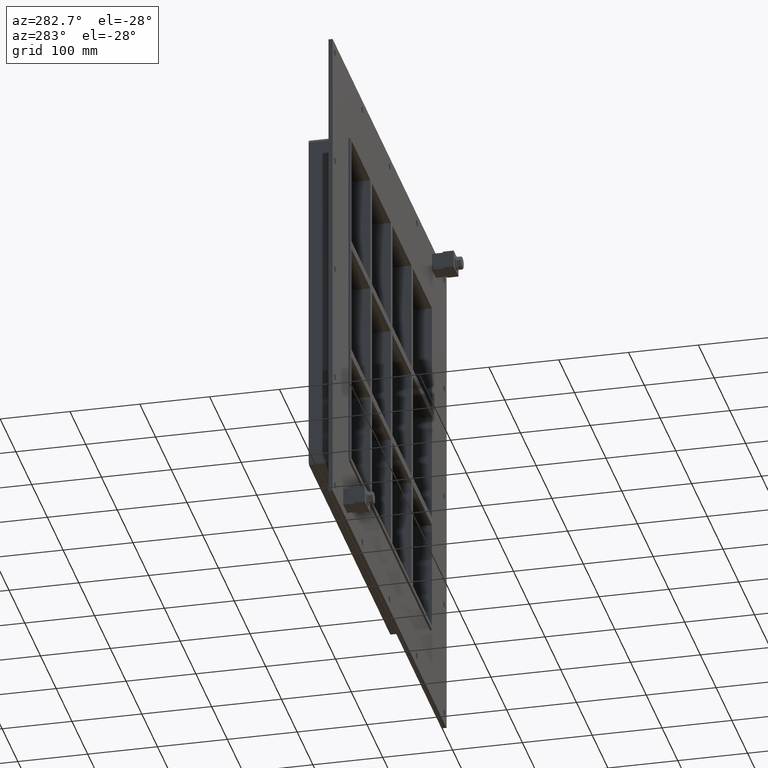
[diagram: clean part render]
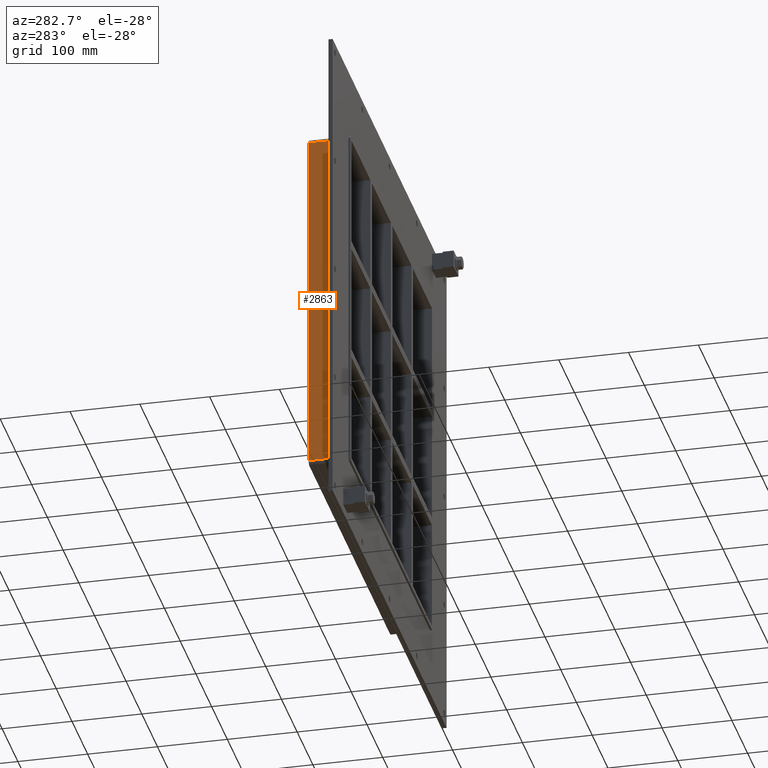
[diagram: same view with one face highlighted and labeled with its STEP entity id]
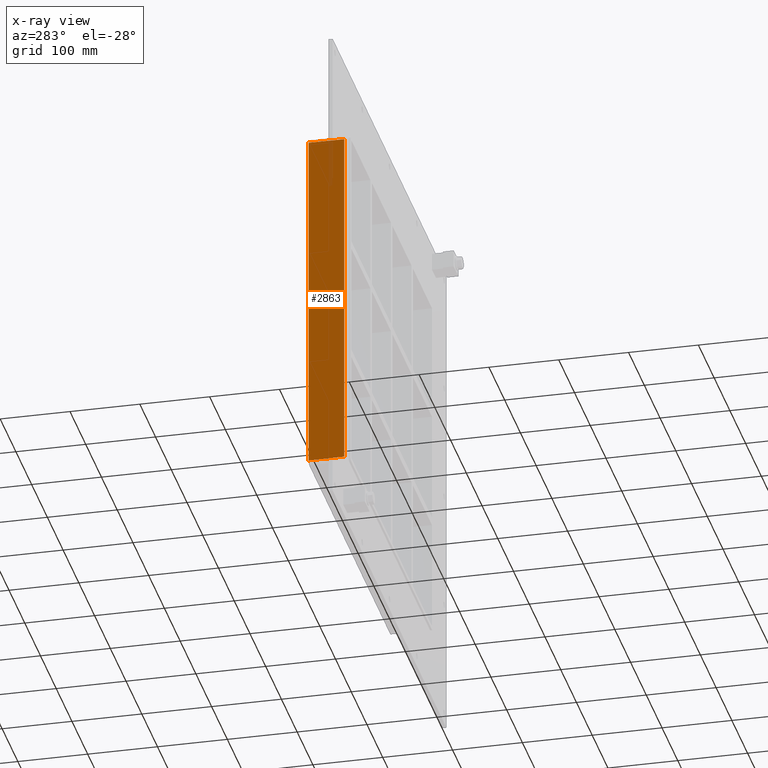
[diagram: x-ray of the same camera — body ghosted, the highlighted face saturated]
A machine part, auxiliary view. The second image highlights one B-rep face of the part: STEP entity #2863.
The next image is the same camera in x-ray: the body ghosted, the highlighted face saturated — about 2% of this face is hidden behind the body in this view.
In plain terms, the highlighted planar face has unit normal (-1, 0, 0).
Its self-contained STEP definition (entity closure, byte-faithful):
#1151=CARTESIAN_POINT('',(-262.0,57.0,-251.25));
#1152=VERTEX_POINT('',#1151);
#1162=CARTESIAN_POINT('',(-262.0,57.0,251.25));
#1163=VERTEX_POINT('',#1162);
#1164=CARTESIAN_POINT('',(-262.0,57.0,-251.25));
#1165=DIRECTION('',(0.0,0.0,1.0));
#1166=VECTOR('',#1165,502.5);
#1167=LINE('',#1164,#1166);
#1168=EDGE_CURVE('',#1152,#1163,#1167,.T.);
#2375=CARTESIAN_POINT('',(-262.0,6.000000000000001,251.25));
#2376=VERTEX_POINT('',#2375);
#2386=CARTESIAN_POINT('',(-262.0,6.000000000000001,-251.25));
#2387=VERTEX_POINT('',#2386);
#2388=CARTESIAN_POINT('',(-262.0,6.000000000000001,-251.25));
#2389=DIRECTION('',(0.0,0.0,1.0));
#2390=VECTOR('',#2389,502.5);
#2391=LINE('',#2388,#2390);
#2392=EDGE_CURVE('',#2387,#2376,#2391,.T.);
#2802=CARTESIAN_POINT('',(-262.0,6.000000000000001,-251.25));
#2803=DIRECTION('',(0.0,1.0,0.0));
#2804=VECTOR('',#2803,51.0);
#2805=LINE('',#2802,#2804);
#2806=EDGE_CURVE('',#2387,#1152,#2805,.T.);
#2847=CARTESIAN_POINT('',(-262.0,0.0,-257.25));
#2848=DIRECTION('',(-1.0,0.0,0.0));
#2849=DIRECTION('',(0.0,0.0,1.0));
#2850=AXIS2_PLACEMENT_3D('',#2847,#2848,#2849);
#2851=PLANE('',#2850);
#2852=ORIENTED_EDGE('',*,*,#2392,.T.);
#2853=CARTESIAN_POINT('',(-262.0,57.0,251.25));
#2854=DIRECTION('',(0.0,-1.0,0.0));
#2855=VECTOR('',#2854,51.0);
#2856=LINE('',#2853,#2855);
#2857=EDGE_CURVE('',#1163,#2376,#2856,.T.);
#2858=ORIENTED_EDGE('',*,*,#2857,.F.);
#2859=ORIENTED_EDGE('',*,*,#1168,.F.);
#2860=ORIENTED_EDGE('',*,*,#2806,.F.);
#2861=EDGE_LOOP('',(#2852,#2858,#2859,#2860));
#2862=FACE_OUTER_BOUND('',#2861,.T.);
#2863=ADVANCED_FACE('',(#2862),#2851,.T.);